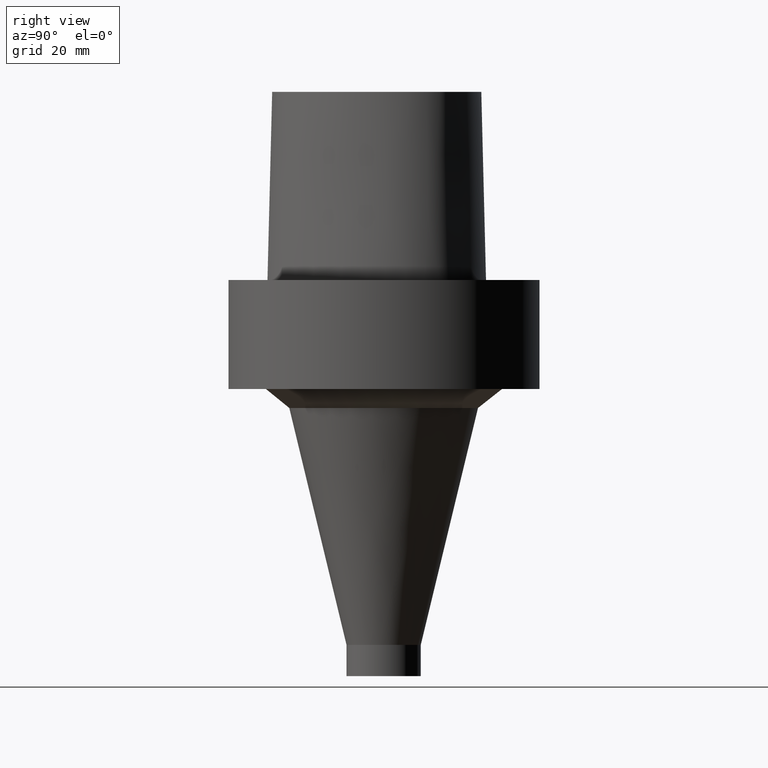
[diagram: clean part render]
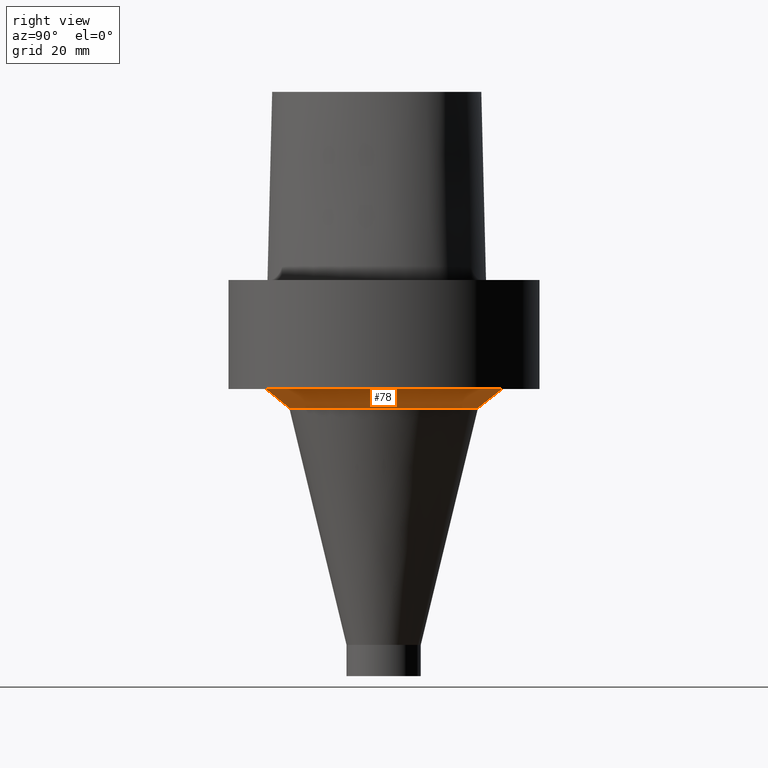
[diagram: same view with one face highlighted and labeled with its STEP entity id]
A machine part, right view. The second image highlights one B-rep face of the part: STEP entity #78.
In plain terms, the highlighted conical surface has half-angle 51.705 deg.
Its self-contained STEP definition (entity closure, byte-faithful):
#78=ADVANCED_FACE('',(#96,#97),#98,.T.);
#96=FACE_BOUND('',#124,.T.);
#97=FACE_BOUND('',#125,.T.);
#98=CONICAL_SURFACE('',#126,21.4922552046655,0.902423967888414);
#124=EDGE_LOOP('',(#298));
#125=EDGE_LOOP('',(#299));
#126=AXIS2_PLACEMENT_3D('',#300,#301,#302);
#298=ORIENTED_EDGE('',*,*,#342,.F.);
#299=ORIENTED_EDGE('',*,*,#341,.T.);
#300=CARTESIAN_POINT('',(1.46468973297153E-015,2.92937946594307E-015,-23.9201986073259));
#301=DIRECTION('',(-6.12323399573677E-017,-1.22464679914735E-016,1.0));
#302=DIRECTION('',(-1.23259516440783E-032,1.0,1.22464679914735E-016));
#341=EDGE_CURVE('',#360,#360,#361,.T.);
#342=EDGE_CURVE('',#362,#362,#363,.T.);
#360=VERTEX_POINT('',#445);
#361=CIRCLE('',#446,23.92409203);
#362=VERTEX_POINT('',#447);
#363=CIRCLE('',#448,19.0604183793309);
#445=CARTESIAN_POINT('',(1.34711147906209E-015,23.92409203,-22.0));
#446=AXIS2_PLACEMENT_3D('',#502,#503,#504);
#447=CARTESIAN_POINT('',(1.58226798688098E-015,19.0604183793309,-25.8403972146518));
#448=AXIS2_PLACEMENT_3D('',#505,#506,#507);
#502=CARTESIAN_POINT('',(1.34711147906209E-015,2.69422295812418E-015,-22.0));
#503=DIRECTION('',(6.12323399573677E-017,1.22464679914735E-016,-1.0));
#504=DIRECTION('',(-1.23259516440783E-032,1.0,1.22464679914735E-016));
#505=CARTESIAN_POINT('',(1.58226798688098E-015,3.16453597376195E-015,-25.8403972146518));
#506=DIRECTION('',(6.12323399573677E-017,1.22464679914735E-016,-1.0));
#507=DIRECTION('',(-1.23259516440783E-032,1.0,1.22464679914735E-016));